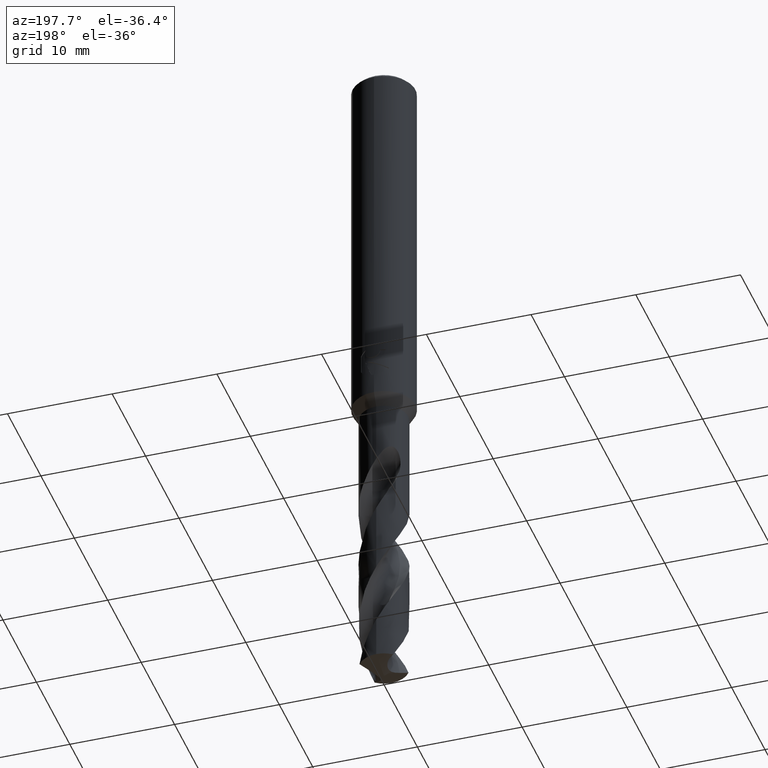
[diagram: clean part render]
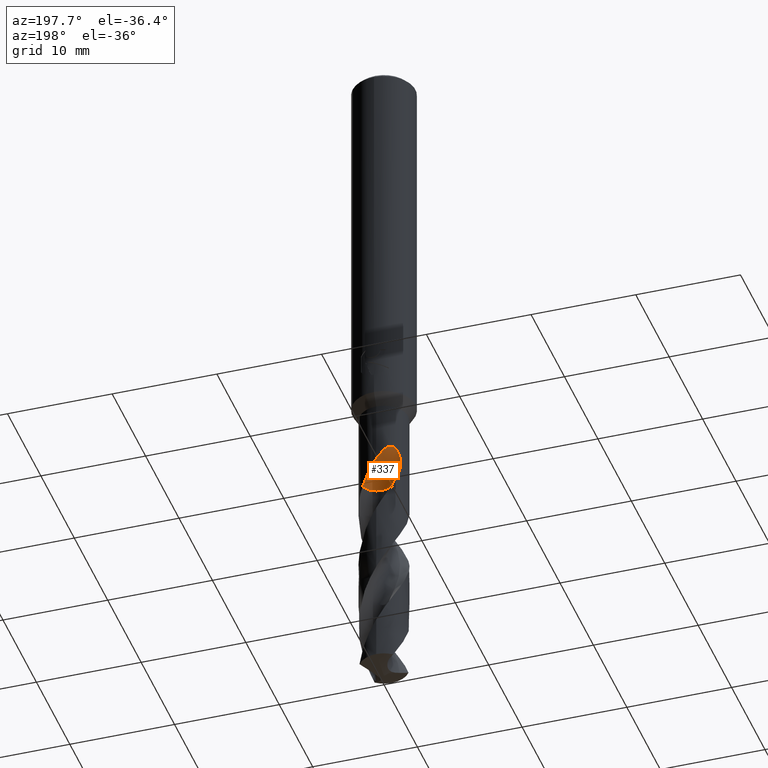
[diagram: same view with one face highlighted and labeled with its STEP entity id]
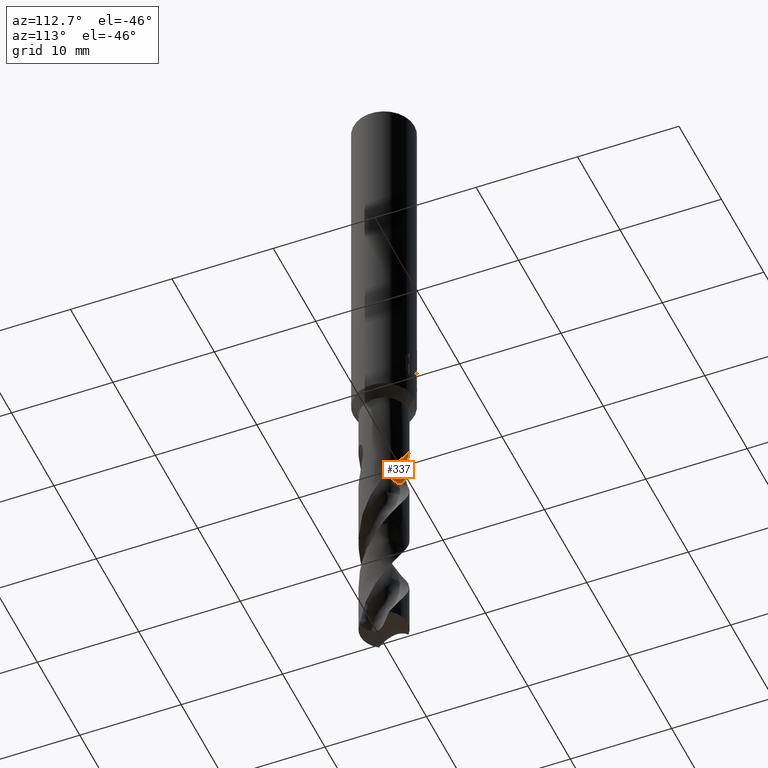
[diagram: same view with one face highlighted and labeled with its STEP entity id]
A machine part, auxiliary view. The second image highlights one B-rep face of the part: STEP entity #337.
A second angle (auxiliary view) of the same face is appended — the face is thin or edge-on in the first view.
In plain terms, the highlighted face is a SurfaceOfRevolution surface.
Its self-contained STEP definition (entity closure, byte-faithful):
#337=ADVANCED_FACE('',(#863),#864,.F.);
#393=VERTEX_POINT('',#926);
#443=EDGE_CURVE('',#589,#753,#983,.T.);
#451=EDGE_CURVE('',#393,#477,#993,.T.);
#477=VERTEX_POINT('',#1020);
#515=EDGE_CURVE('',#759,#753,#1063,.T.);
#589=VERTEX_POINT('',#1142);
#625=EDGE_CURVE('',#393,#759,#1180,.T.);
#723=EDGE_CURVE('',#477,#589,#1289,.T.);
#753=VERTEX_POINT('',#1321);
#759=VERTEX_POINT('',#1328);
#863=FACE_OUTER_BOUND('',#1772,.T.);
#864=SURFACE_OF_REVOLUTION('',#1773,#1774);
#926=CARTESIAN_POINT('',(1.48152781817987,1.79184271741668,-45.5204));
#983=CIRCLE('',#2945,10.1027292678117);
#993=CIRCLE('',#3116,1.55);
#1020=CARTESIAN_POINT('',(-0.242937713365769,0.716646206861117,-45.5204));
#1063=B_SPLINE_CURVE_WITH_KNOTS('',3,(#4188,#4189,#4190,#4191,#4192,#4193,#4194,#4195,#4196,#4197,#4198,#4199,#4200,#4201,#4202,#4203,#4204,#4205,#4206,#4207,#4208,#4209,#4210,#4211,#4212,#4213,#4214,#4215),.UNSPECIFIED.,.F.,.F.,(4,2,2,2,2,2,2,2,2,2,2,2,2,4),(0.0,1.13912248348588,1.76110910374654,2.32447259930621,2.97896567979331,3.76516129419405,4.44657056783404,4.75536160848655,4.98105022244976,5.19461766066321,5.46554068969925,5.86191207239794,6.42540059556112,7.06617161550241),.UNSPECIFIED.);
#1142=CARTESIAN_POINT('',(-1.09601551076844,1.15148448923156,-45.5204));
#1180=B_SPLINE_CURVE_WITH_KNOTS('',3,(#5335,#5336,#5337,#5338,#5339,#5340,#5341,#5342,#5343,#5344,#5345,#5346,#5347,#5348,#5349,#5350,#5351,#5352,#5353,#5354,#5355,#5356,#5357,#5358,#5359,#5360,#5361,#5362),.UNSPECIFIED.,.F.,.F.,(4,2,2,2,2,2,2,2,2,2,2,2,2,4),(0.0,1.13912248348588,1.76110910374654,2.32447259930621,2.97896567979331,3.76516129419405,4.44657056783404,4.75536160848655,4.98105022244976,5.19461766066321,5.46554068969925,5.86191207239794,6.42540059556112,7.06617161550241),.UNSPECIFIED.);
#1289=CIRCLE('',#6627,1.55);
#1321=CARTESIAN_POINT('',(-1.89171802965627,1.35167595831005,-44.2472759697794));
#1328=CARTESIAN_POINT('',(-6.86593256614366E-013,2.325,-43.0489714980473));
#1772=EDGE_LOOP('',(#7006,#7007,#7008,#7009,#7010));
#1773=(B_SPLINE_CURVE(3,(#7012,#7013,#7014,#7015,#7016,#7017,#7018,#7019,#7020),.UNSPECIFIED.,.F.,.F.)B_SPLINE_CURVE_WITH_KNOTS((4,1,3,1,4),(-2.85587302611171,-2.55247774395947,-2.24908246180724,-1.945687179655,-1.64229189750277),.UNSPECIFIED.)RATIONAL_B_SPLINE_CURVE((1.09204869723223,1.03068289907741,0.969317100922589,1.03068289907741,1.09204869723223,1.03068289907741,0.969317100922589,1.03068289907741,1.09204869723223))BOUNDED_CURVE()REPRESENTATION_ITEM('')GEOMETRIC_REPRESENTATION_ITEM()CURVE());
#1774=AXIS1_PLACEMENT('',#7027,#7028);
#2945=AXIS2_PLACEMENT_3D('',#7163,#7164,#7165);
#3116=AXIS2_PLACEMENT_3D('',#7182,#7183,#7184);
#4188=CARTESIAN_POINT('',(1.48152781817987,1.79184271741668,-45.5204));
#4189=CARTESIAN_POINT('',(1.32816215524954,1.91864820864443,-45.1970161379965));
#4190=CARTESIAN_POINT('',(1.15182628411203,2.03136949808758,-44.8955182134654));
#4191=CARTESIAN_POINT('',(0.84434904546233,2.16953302435673,-44.3918451695184));
#4192=CARTESIAN_POINT('',(0.733704405919695,2.20927740577945,-44.214636223586));
#4193=CARTESIAN_POINT('',(0.51951035348296,2.26867677151736,-43.8716055507408));
#4194=CARTESIAN_POINT('',(0.416917325289457,2.28966242904573,-43.7073827692751));
#4195=CARTESIAN_POINT('',(0.194846619808166,2.31994993414916,-43.3534389842937));
#4196=CARTESIAN_POINT('',(0.0735139969543763,2.32706061704974,-43.1609474906288));
#4197=CARTESIAN_POINT('',(-0.195934632326863,2.32139290999632,-42.74914471164));
#4198=CARTESIAN_POINT('',(-0.355690414189737,2.30386268257938,-42.5148244390516));
#4199=CARTESIAN_POINT('',(-0.66375879775824,2.23306719086912,-42.1284464504008));
#4200=CARTESIAN_POINT('',(-0.834200744659196,2.17912994749306,-41.9399090686598));
#4201=CARTESIAN_POINT('',(-1.09216290122272,2.05445568284207,-41.7633628792005));
#4202=CARTESIAN_POINT('',(-1.17755003406933,2.00738830728121,-41.7197312722515));
#4203=CARTESIAN_POINT('',(-1.32716792808106,1.91047541566618,-41.6862143675087));
#4204=CARTESIAN_POINT('',(-1.38853463076109,1.86634055462212,-41.6855885216974));
#4205=CARTESIAN_POINT('',(-1.50283343071054,1.77543194979653,-41.7149227780663));
#4206=CARTESIAN_POINT('',(-1.55282202345978,1.73152490647007,-41.7424262534026));
#4207=CARTESIAN_POINT('',(-1.65454825534067,1.63530604700301,-41.8284814688829));
#4208=CARTESIAN_POINT('',(-1.7016114144506,1.58544301599988,-41.8920177676555));
#4209=CARTESIAN_POINT('',(-1.79801198251176,1.47656343284232,-42.0659998892848));
#4210=CARTESIAN_POINT('',(-1.84408953241722,1.41727070809296,-42.1950432119693));
#4211=CARTESIAN_POINT('',(-1.93073666212595,1.29821165554219,-42.5560920700774));
#4212=CARTESIAN_POINT('',(-1.962061605364,1.24749821680123,-42.8132262215861));
#4213=CARTESIAN_POINT('',(-1.98209052043838,1.21546136214634,-43.4279852717849));
#4214=CARTESIAN_POINT('',(-1.9678987245023,1.24505839729924,-43.813981732258));
#4215=CARTESIAN_POINT('',(-1.89171802965627,1.35167595831006,-44.2472759697795));
#5335=CARTESIAN_POINT('',(1.48152781817987,1.79184271741668,-45.5204));
#5336=CARTESIAN_POINT('',(1.32816215524954,1.91864820864443,-45.1970161379965));
#5337=CARTESIAN_POINT('',(1.15182628411203,2.03136949808758,-44.8955182134654));
#5338=CARTESIAN_POINT('',(0.84434904546233,2.16953302435673,-44.3918451695184));
#5339=CARTESIAN_POINT('',(0.733704405919695,2.20927740577945,-44.214636223586));
#5340=CARTESIAN_POINT('',(0.51951035348296,2.26867677151736,-43.8716055507408));
#5341=CARTESIAN_POINT('',(0.416917325289457,2.28966242904573,-43.7073827692751));
#5342=CARTESIAN_POINT('',(0.194846619808166,2.31994993414916,-43.3534389842937));
#5343=CARTESIAN_POINT('',(0.0735139969543763,2.32706061704974,-43.1609474906288));
#5344=CARTESIAN_POINT('',(-0.195934632326863,2.32139290999632,-42.74914471164));
#5345=CARTESIAN_POINT('',(-0.355690414189737,2.30386268257938,-42.5148244390516));
#5346=CARTESIAN_POINT('',(-0.66375879775824,2.23306719086912,-42.1284464504008));
#5347=CARTESIAN_POINT('',(-0.834200744659196,2.17912994749306,-41.9399090686598));
#5348=CARTESIAN_POINT('',(-1.09216290122272,2.05445568284207,-41.7633628792005));
#5349=CARTESIAN_POINT('',(-1.17755003406933,2.00738830728121,-41.7197312722515));
#5350=CARTESIAN_POINT('',(-1.32716792808106,1.91047541566618,-41.6862143675087));
#5351=CARTESIAN_POINT('',(-1.38853463076109,1.86634055462212,-41.6855885216974));
#5352=CARTESIAN_POINT('',(-1.50283343071054,1.77543194979653,-41.7149227780663));
#5353=CARTESIAN_POINT('',(-1.55282202345978,1.73152490647007,-41.7424262534026));
#5354=CARTESIAN_POINT('',(-1.65454825534067,1.63530604700301,-41.8284814688829));
#5355=CARTESIAN_POINT('',(-1.7016114144506,1.58544301599988,-41.8920177676555));
#5356=CARTESIAN_POINT('',(-1.79801198251176,1.47656343284232,-42.0659998892848));
#5357=CARTESIAN_POINT('',(-1.84408953241722,1.41727070809296,-42.1950432119693));
#5358=CARTESIAN_POINT('',(-1.93073666212595,1.29821165554219,-42.5560920700774));
#5359=CARTESIAN_POINT('',(-1.962061605364,1.24749821680123,-42.8132262215861));
#5360=CARTESIAN_POINT('',(-1.98209052043838,1.21546136214634,-43.4279852717849));
#5361=CARTESIAN_POINT('',(-1.9678987245023,1.24505839729924,-43.813981732258));
#5362=CARTESIAN_POINT('',(-1.89171802965627,1.35167595831006,-44.2472759697795));
#6627=AXIS2_PLACEMENT_3D('',#7469,#7470,#7471);
#7006=ORIENTED_EDGE('',*,*,#625,.F.);
#7007=ORIENTED_EDGE('',*,*,#451,.T.);
#7008=ORIENTED_EDGE('',*,*,#723,.T.);
#7009=ORIENTED_EDGE('',*,*,#443,.T.);
#7010=ORIENTED_EDGE('',*,*,#515,.F.);
#7012=CARTESIAN_POINT('',(-1.09601551076844,1.15148448923156,-45.5204));
#7013=CARTESIAN_POINT('',(-0.880933414429199,0.936397506499739,-45.5204));
#7014=CARTESIAN_POINT('',(-0.32139582677035,0.631003069685135,-45.5204));
#7015=CARTESIAN_POINT('',(0.312408318500273,0.699123400557569,-45.5204));
#7016=CARTESIAN_POINT('',(0.593410409526739,0.815573145705912,-45.5204));
#7017=CARTESIAN_POINT('',(0.874412500553206,0.932022890854255,-45.5204));
#7018=CARTESIAN_POINT('',(1.37061470882677,1.33218716030473,-45.5204));
#7019=CARTESIAN_POINT('',(1.55011719586146,1.94384632290164,-45.5204));
#7020=CARTESIAN_POINT('',(1.55001235783587,2.24802177772229,-45.5204));
#7027=CARTESIAN_POINT('',(-0.788145985271685,11.2375,-46.0129912407948));
#7028=DIRECTION('',(0.847998304005088,-0.0,0.52999894000318));
#7163=CARTESIAN_POINT('',(-0.788145985271685,11.2375,-46.0129912407948));
#7164=DIRECTION('',(-0.847998304005088,0.0,-0.52999894000318));
#7165=DIRECTION('',(-0.0535598122533608,-0.994880693138896,0.0856956996053773));
#7182=CARTESIAN_POINT('',(1.24499001132517E-005,2.24748755009989,-45.5204));
#7183=DIRECTION('',(0.0,0.0,-1.0));
#7184=DIRECTION('',(0.707098748947307,0.707114813334548,0.0));
#7469=CARTESIAN_POINT('',(1.24499001132517E-005,2.24748755009989,-45.5204));
#7470=DIRECTION('',(0.0,0.0,-1.0));
#7471=DIRECTION('',(0.707098748947307,0.707114813334548,0.0));